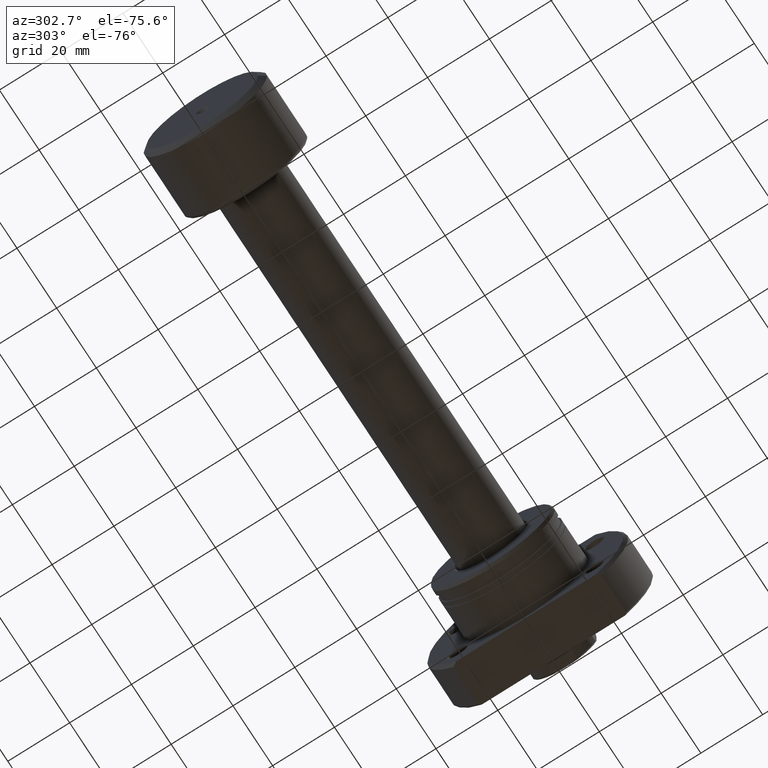
[diagram: clean part render]
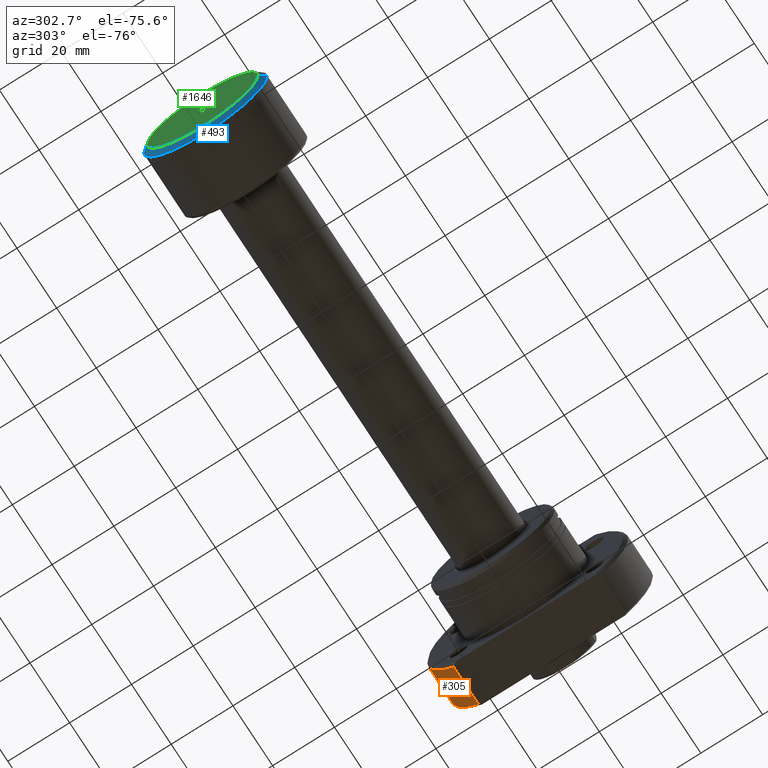
[diagram: same view with three faces highlighted in distinct colors, each labeled with its STEP entity id]
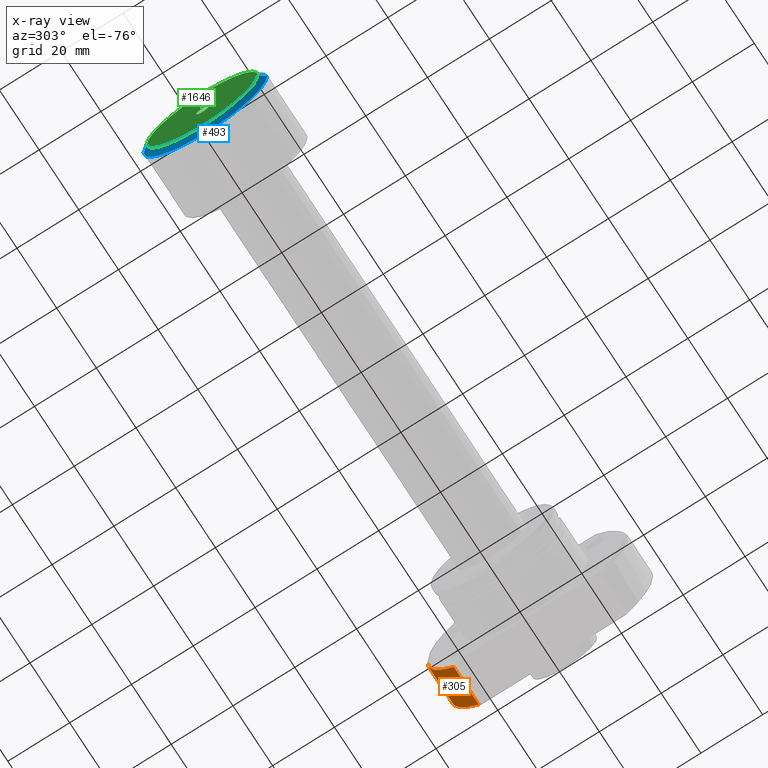
[diagram: x-ray of the same camera — body ghosted, the three highlighted faces saturated]
A machine part, auxiliary view with three faces highlighted in distinct colors.
The next image is the same camera in x-ray (body ghosted, the three faces saturated) — at least one of them is partly hidden behind the body in this view.
Their STEP definitions:

[orange] entity #305 — the highlighted cylindrical surface (partial cylindrical patch) has radius 32.5 mm, axis along (1, 0, 0).
#50 = CARTESIAN_POINT ( 'NONE',  ( -2.498001805406602216E-13, 23.92174742781216423, -21.99999999999998934 ) ) ;
#108 = EDGE_CURVE ( 'NONE', #421, #1531, #2266, .T. ) ;
#247 = VERTEX_POINT ( 'NONE', #288 ) ;
#258 = DIRECTION ( 'NONE',  ( 1.000000000000000000, 2.721437331438560389E-17, -0.000000000000000000 ) ) ;
#288 = CARTESIAN_POINT ( 'NONE',  ( 18.49999999999998934, 32.49999999999990763, 0.000000000000000000 ) ) ;
#300 = CARTESIAN_POINT ( 'NONE',  ( 18.49999999999998934, 23.92174742781163133, -21.99999999999998934 ) ) ;
#305 = ADVANCED_FACE ( 'NONE', ( #2569 ), #407, .T. ) ;
#335 = CARTESIAN_POINT ( 'NONE',  ( 31.00000000000008171, 32.49999999999990763, 0.000000000000000000 ) ) ;
#355 = CARTESIAN_POINT ( 'NONE',  ( 31.50000000000000000, 8.572527594031465301E-16, 0.000000000000000000 ) ) ;
#378 = CARTESIAN_POINT ( 'NONE',  ( 31.00000000000008171, 8.436455727459560039E-16, 0.000000000000000000 ) ) ;
#407 = CYLINDRICAL_SURFACE ( 'NONE', #2756, 32.49999999999990763 ) ;
#421 = VERTEX_POINT ( 'NONE', #300 ) ;
#659 = ORIENTED_EDGE ( 'NONE', *, *, #2392, .T. ) ;
#670 = ORIENTED_EDGE ( 'NONE', *, *, #734, .F. ) ;
#734 = EDGE_CURVE ( 'NONE', #1531, #1861, #2910, .T. ) ;
#766 = DIRECTION ( 'NONE',  ( 1.000000000000000000, 2.721437331438560389E-17, -0.000000000000000000 ) ) ;
#800 = VECTOR ( 'NONE', #258, 1000.000000000000000 ) ;
#825 = EDGE_LOOP ( 'NONE', ( #2157, #659, #670, #1742 ) ) ;
#859 = AXIS2_PLACEMENT_3D ( 'NONE', #2811, #766, #1754 ) ;
#898 = AXIS2_PLACEMENT_3D ( 'NONE', #378, #3044, #1810 ) ;
#904 = DIRECTION ( 'NONE',  ( 0.000000000000000000, 1.000000000000000000, 0.000000000000000000 ) ) ;
#953 = CIRCLE ( 'NONE', #859, 32.49999999999990763 ) ;
#1531 = VERTEX_POINT ( 'NONE', #2570 ) ;
#1536 = CARTESIAN_POINT ( 'NONE',  ( 31.50000000000000000, 32.49999999999990763, 0.000000000000000000 ) ) ;
#1742 = ORIENTED_EDGE ( 'NONE', *, *, #108, .F. ) ;
#1754 = DIRECTION ( 'NONE',  ( 0.000000000000000000, 1.000000000000000000, 0.000000000000000000 ) ) ;
#1810 = DIRECTION ( 'NONE',  ( 0.000000000000000000, 1.000000000000000000, 0.000000000000000000 ) ) ;
#1861 = VERTEX_POINT ( 'NONE', #335 ) ;
#1970 = EDGE_CURVE ( 'NONE', #421, #247, #953, .T. ) ;
#1999 = LINE ( 'NONE', #1536, #800 ) ;
#2157 = ORIENTED_EDGE ( 'NONE', *, *, #1970, .T. ) ;
#2266 = LINE ( 'NONE', #50, #2605 ) ;
#2392 = EDGE_CURVE ( 'NONE', #247, #1861, #1999, .T. ) ;
#2518 = DIRECTION ( 'NONE',  ( 1.000000000000000000, -2.886466111666351885E-14, -0.000000000000000000 ) ) ;
#2569 = FACE_OUTER_BOUND ( 'NONE', #825, .T. ) ;
#2570 = CARTESIAN_POINT ( 'NONE',  ( 31.00000000000007461, 23.92174742781126895, -21.99999999999998934 ) ) ;
#2605 = VECTOR ( 'NONE', #2518, 1000.000000000000000 ) ;
#2756 = AXIS2_PLACEMENT_3D ( 'NONE', #355, #2862, #904 ) ;
#2811 = CARTESIAN_POINT ( 'NONE',  ( 18.49999999999998934, 5.034659063161333869E-16, 0.000000000000000000 ) ) ;
#2862 = DIRECTION ( 'NONE',  ( 1.000000000000000000, 2.721437331438560389E-17, -0.000000000000000000 ) ) ;
#2910 = CIRCLE ( 'NONE', #898, 32.49999999999990763 ) ;
#3044 = DIRECTION ( 'NONE',  ( 1.000000000000000000, 2.721437331438560389E-17, -0.000000000000000000 ) ) ;

[blue] entity #493 — the highlighted conical surface has half-angle 53.13 deg.
#44 = ORIENTED_EDGE ( 'NONE', *, *, #1771, .T. ) ;
#176 = LINE ( 'NONE', #2869, #3136 ) ;
#180 = ORIENTED_EDGE ( 'NONE', *, *, #910, .T. ) ;
#456 = DIRECTION ( 'NONE',  ( -1.069542322069065647E-17, 1.000000000000000000, 0.000000000000000000 ) ) ;
#457 = DIRECTION ( 'NONE',  ( 1.084202172485504434E-17, -1.000000000000000000, 0.000000000000000000 ) ) ;
#493 = ADVANCED_FACE ( 'NONE', ( #1922 ), #1564, .T. ) ;
#620 = DIRECTION ( 'NONE',  ( 0.6000000000000005329, -0.7999999999999996003, 9.797174393178821220E-17 ) ) ;
#679 = DIRECTION ( 'NONE',  ( 1.069542322069065647E-17, -1.000000000000000000, 0.000000000000000000 ) ) ;
#776 = CARTESIAN_POINT ( 'NONE',  ( 2.011846620492804129E-15, 2.151755106128676308E-32, 0.000000000000000000 ) ) ;
#819 = CARTESIAN_POINT ( 'NONE',  ( 1.500000000000002442, 20.00000000000000000, 0.000000000000000000 ) ) ;
#894 = VERTEX_POINT ( 'NONE', #3130 ) ;
#910 = EDGE_CURVE ( 'NONE', #2419, #2376, #2718, .T. ) ;
#1224 = EDGE_CURVE ( 'NONE', #894, #1519, #176, .T. ) ;
#1321 = AXIS2_PLACEMENT_3D ( 'NONE', #2173, #1405, #679 ) ;
#1405 = DIRECTION ( 'NONE',  ( -1.000000000000000000, -1.069542322069065801E-17, -0.000000000000000000 ) ) ;
#1519 = VERTEX_POINT ( 'NONE', #2743 ) ;
#1564 = CONICAL_SURFACE ( 'NONE', #2242, 18.00000000000000355, 0.9272952180016115209 ) ;
#1672 = CIRCLE ( 'NONE', #1985, 20.00000000000000000 ) ;
#1679 = CIRCLE ( 'NONE', #1321, 18.00000000000000355 ) ;
#1684 = ORIENTED_EDGE ( 'NONE', *, *, #1224, .F. ) ;
#1771 = EDGE_CURVE ( 'NONE', #2376, #1519, #1672, .T. ) ;
#1922 = FACE_OUTER_BOUND ( 'NONE', #3038, .T. ) ;
#1923 = DIRECTION ( 'NONE',  ( -1.000000000000000000, -1.069542322069065801E-17, -0.000000000000000000 ) ) ;
#1979 = VECTOR ( 'NONE', #2703, 1000.000000000000000 ) ;
#1985 = AXIS2_PLACEMENT_3D ( 'NONE', #3165, #1923, #457 ) ;
#2173 = CARTESIAN_POINT ( 'NONE',  ( 2.011846620492804129E-15, 2.151755106128676308E-32, 0.000000000000000000 ) ) ;
#2224 = CARTESIAN_POINT ( 'NONE',  ( 1.819329002520372041E-15, 18.00000000000000355, 0.000000000000000000 ) ) ;
#2242 = AXIS2_PLACEMENT_3D ( 'NONE', #776, #2990, #456 ) ;
#2376 = VERTEX_POINT ( 'NONE', #819 ) ;
#2419 = VERTEX_POINT ( 'NONE', #2738 ) ;
#2504 = EDGE_CURVE ( 'NONE', #2419, #894, #1679, .T. ) ;
#2703 = DIRECTION ( 'NONE',  ( 0.6000000000000005329, 0.7999999999999996003, 0.000000000000000000 ) ) ;
#2718 = LINE ( 'NONE', #2224, #1979 ) ;
#2738 = CARTESIAN_POINT ( 'NONE',  ( 1.819329002520372041E-15, 18.00000000000000355, 0.000000000000000000 ) ) ;
#2743 = CARTESIAN_POINT ( 'NONE',  ( 1.500000000000002887, -20.00000000000000000, 2.449293598294706513E-15 ) ) ;
#2869 = CARTESIAN_POINT ( 'NONE',  ( 2.204364238465235822E-15, -18.00000000000000355, 2.204364238465235822E-15 ) ) ;
#2990 = DIRECTION ( 'NONE',  ( 1.000000000000000000, 1.069542322069065801E-17, 0.000000000000000000 ) ) ;
#3038 = EDGE_LOOP ( 'NONE', ( #1684, #3151, #180, #44 ) ) ;
#3130 = CARTESIAN_POINT ( 'NONE',  ( 2.204364238465235822E-15, -18.00000000000000355, 2.326828918379971365E-15 ) ) ;
#3136 = VECTOR ( 'NONE', #620, 1000.000000000000000 ) ;
#3151 = ORIENTED_EDGE ( 'NONE', *, *, #2504, .F. ) ;
#3165 = CARTESIAN_POINT ( 'NONE',  ( 1.500000000000002442, 1.604313483103601552E-17, 0.000000000000000000 ) ) ;

[green] entity #1646 — the highlighted planar face has unit normal (-1, -0, 0).
#122 = CIRCLE ( 'NONE', #2906, 18.00000000000000355 ) ;
#379 = EDGE_CURVE ( 'NONE', #894, #2419, #122, .T. ) ;
#417 = DIRECTION ( 'NONE',  ( 1.069542322069068574E-17, -1.000000000000000000, 0.000000000000000000 ) ) ;
#589 = CARTESIAN_POINT ( 'NONE',  ( 1.005923310246402065E-15, 0.000000000000000000, 2.074999999999993516 ) ) ;
#663 = VERTEX_POINT ( 'NONE', #589 ) ;
#673 = DIRECTION ( 'NONE',  ( -1.000000000000000000, -1.069542322069065801E-17, 0.000000000000000000 ) ) ;
#679 = DIRECTION ( 'NONE',  ( 1.069542322069065647E-17, -1.000000000000000000, 0.000000000000000000 ) ) ;
#792 = AXIS2_PLACEMENT_3D ( 'NONE', #2091, #1850, #2381 ) ;
#860 = EDGE_CURVE ( 'NONE', #663, #1759, #3184, .T. ) ;
#878 = CARTESIAN_POINT ( 'NONE',  ( 2.011846620492804129E-15, 2.151755106128676308E-32, 0.000000000000000000 ) ) ;
#894 = VERTEX_POINT ( 'NONE', #3130 ) ;
#977 = ORIENTED_EDGE ( 'NONE', *, *, #860, .T. ) ;
#1118 = AXIS2_PLACEMENT_3D ( 'NONE', #1417, #673, #1656 ) ;
#1130 = EDGE_LOOP ( 'NONE', ( #2190, #1178 ) ) ;
#1149 = DIRECTION ( 'NONE',  ( 1.000000000000000000, 1.069542322069065801E-17, 0.000000000000000000 ) ) ;
#1168 = DIRECTION ( 'NONE',  ( -1.000000000000000000, -1.069542322069065801E-17, -0.000000000000000000 ) ) ;
#1178 = ORIENTED_EDGE ( 'NONE', *, *, #379, .T. ) ;
#1194 = CARTESIAN_POINT ( 'NONE',  ( 1.005923310246402065E-15, 0.000000000000000000, 0.000000000000000000 ) ) ;
#1321 = AXIS2_PLACEMENT_3D ( 'NONE', #2173, #1405, #679 ) ;
#1405 = DIRECTION ( 'NONE',  ( -1.000000000000000000, -1.069542322069065801E-17, -0.000000000000000000 ) ) ;
#1417 = CARTESIAN_POINT ( 'NONE',  ( 1.005923310246402065E-15, 1.075877553064338154E-32, 0.000000000000000000 ) ) ;
#1453 = ORIENTED_EDGE ( 'NONE', *, *, #1595, .T. ) ;
#1595 = EDGE_CURVE ( 'NONE', #1759, #663, #2196, .T. ) ;
#1597 = PLANE ( 'NONE',  #1118 ) ;
#1630 = FACE_BOUND ( 'NONE', #3149, .T. ) ;
#1646 = ADVANCED_FACE ( 'NONE', ( #1630, #2636 ), #1597, .T. ) ;
#1656 = DIRECTION ( 'NONE',  ( 1.069542322069065801E-17, -1.000000000000000000, 0.000000000000000000 ) ) ;
#1679 = CIRCLE ( 'NONE', #1321, 18.00000000000000355 ) ;
#1759 = VERTEX_POINT ( 'NONE', #3203 ) ;
#1849 = DIRECTION ( 'NONE',  ( 1.069542322069065647E-17, -1.000000000000000000, 0.000000000000000000 ) ) ;
#1850 = DIRECTION ( 'NONE',  ( 1.000000000000000000, 1.069542322069065801E-17, 0.000000000000000000 ) ) ;
#2091 = CARTESIAN_POINT ( 'NONE',  ( 1.005923310246402065E-15, 0.000000000000000000, 0.000000000000000000 ) ) ;
#2173 = CARTESIAN_POINT ( 'NONE',  ( 2.011846620492804129E-15, 2.151755106128676308E-32, 0.000000000000000000 ) ) ;
#2190 = ORIENTED_EDGE ( 'NONE', *, *, #2504, .T. ) ;
#2196 = CIRCLE ( 'NONE', #792, 2.074999999999993516 ) ;
#2381 = DIRECTION ( 'NONE',  ( 1.069542322069068574E-17, -1.000000000000000000, 0.000000000000000000 ) ) ;
#2419 = VERTEX_POINT ( 'NONE', #2738 ) ;
#2504 = EDGE_CURVE ( 'NONE', #2419, #894, #1679, .T. ) ;
#2636 = FACE_OUTER_BOUND ( 'NONE', #1130, .T. ) ;
#2738 = CARTESIAN_POINT ( 'NONE',  ( 1.819329002520372041E-15, 18.00000000000000355, 0.000000000000000000 ) ) ;
#2906 = AXIS2_PLACEMENT_3D ( 'NONE', #878, #1168, #1849 ) ;
#3130 = CARTESIAN_POINT ( 'NONE',  ( 2.204364238465235822E-15, -18.00000000000000355, 2.326828918379971365E-15 ) ) ;
#3132 = AXIS2_PLACEMENT_3D ( 'NONE', #1194, #1149, #417 ) ;
#3149 = EDGE_LOOP ( 'NONE', ( #977, #1453 ) ) ;
#3184 = CIRCLE ( 'NONE', #3132, 2.074999999999993516 ) ;
#3203 = CARTESIAN_POINT ( 'NONE',  ( 1.005923310246402065E-15, 2.541142108230750183E-16, -2.074999999999993516 ) ) ;